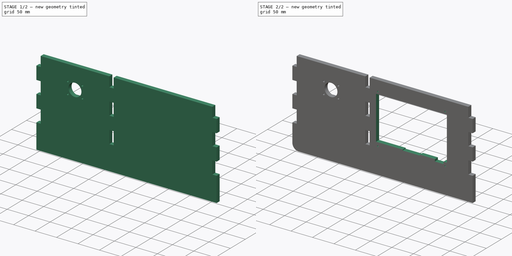
[diagram: build sequence overview — one tinted view per stage of 2, left to right]
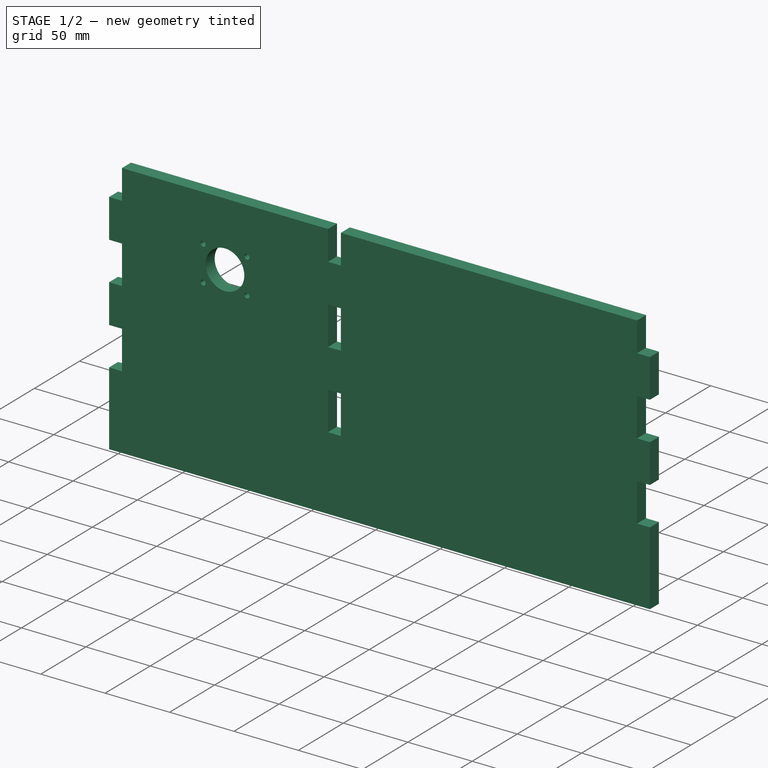
[diagram: stage 1 of 2 — iso view after this stage's code; geometry added in this stage tinted green]
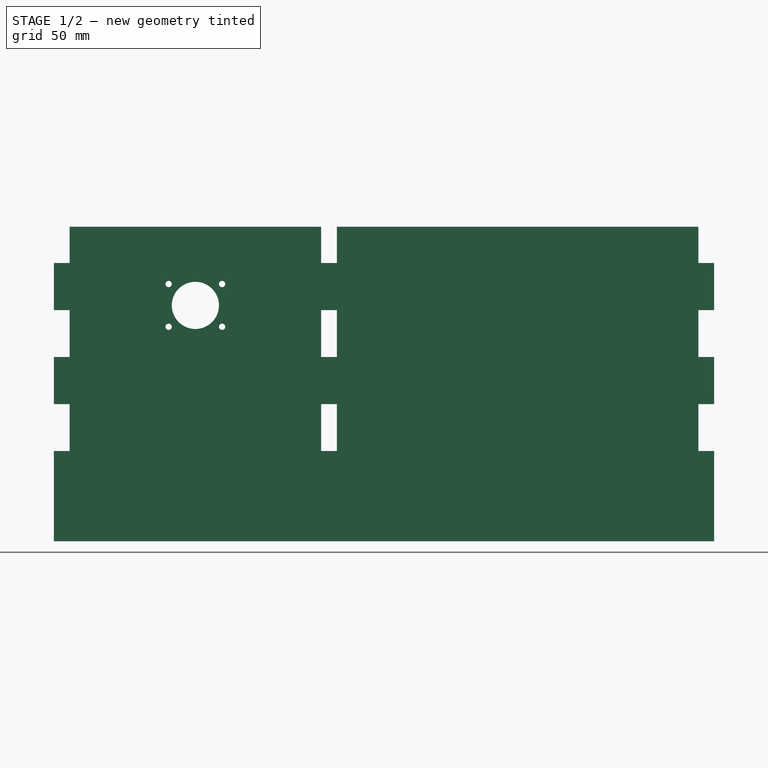
[diagram: stage 1 of 2 — front view after this stage's code; geometry added in this stage tinted green]
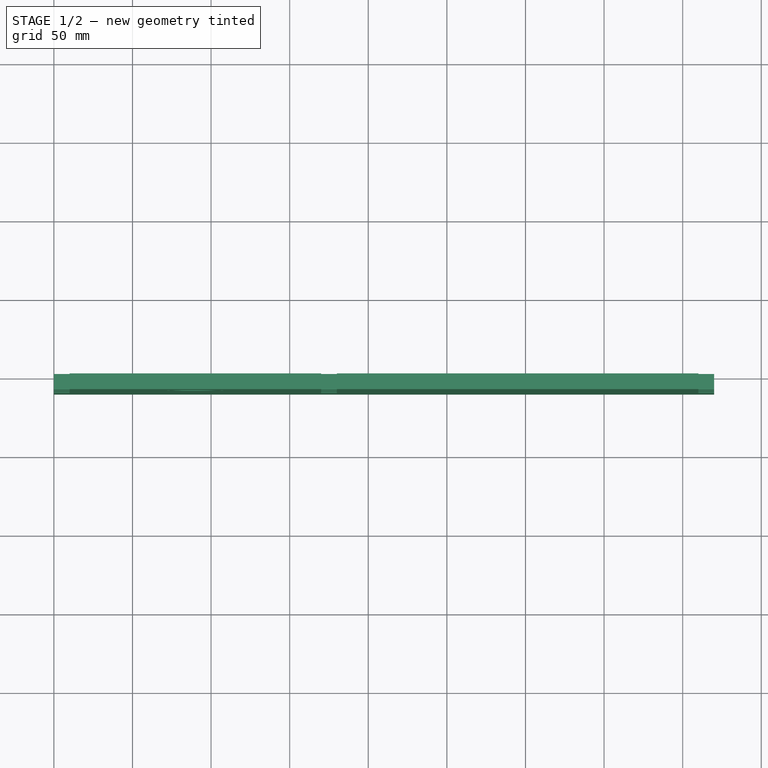
[diagram: stage 1 of 2 — top view after this stage's code; geometry added in this stage tinted green]
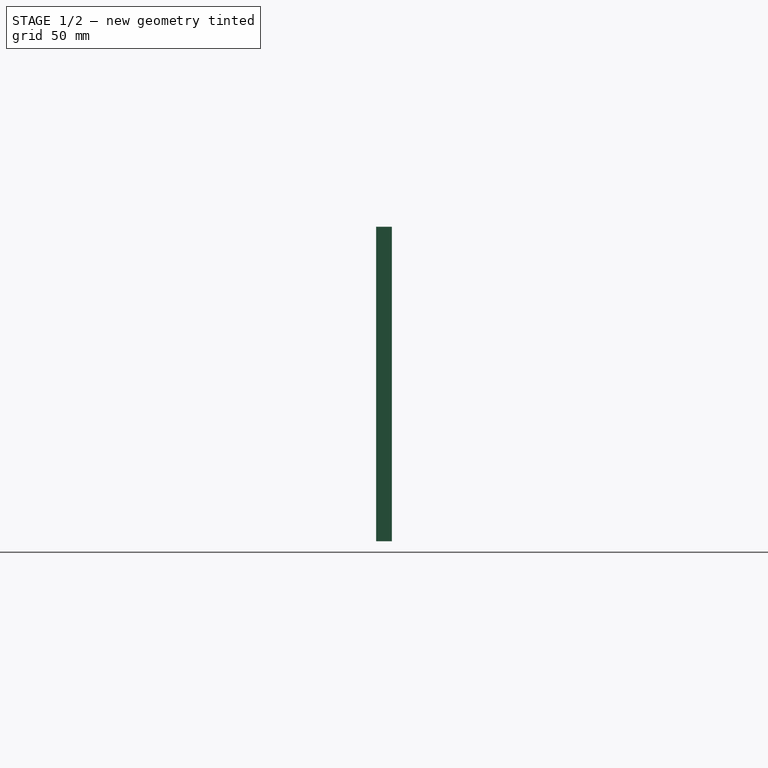
[diagram: stage 1 of 2 — right view after this stage's code; geometry added in this stage tinted green]
FCSTD DOCUMENT  (FreeCAD 0.19R19327 (Git))
Label: Panel
License: All rights reserved
LicenseURL: http://en.wikipedia.org/wiki/All_rights_reserved
objects: Sketcher::SketchObject×3, PartDesign::Pocket×2, PartDesign::Pad×1, PartDesign::Fillet×1, PartDesign::Body×1
note: 11 computed .brp shape members not serialized (recipe doc carries the construction recipe); baked Part::Feature solids carry a one-line shape summary decoded from their .brp

FEATURE [Sketcher::SketchObject] Sketch
  MapMode = 5
  Placement = pos=(0,0,0) rot=(1,0,0;1.5708rad)
  Support = -> [XZ_Plane]
  sketch-geometry (38):
    g0: LineSegment StartX=0 StartY=0 StartZ=0 EndX=0 EndY=57.4 EndZ=0
    g1: LineSegment StartX=0 StartY=57.4 StartZ=0 EndX=10 EndY=57.4 EndZ=0
    g2: LineSegment StartX=10 StartY=57.4 StartZ=0 EndX=10 EndY=87.2 EndZ=0
    g3: LineSegment StartX=10 StartY=87.2 StartZ=0 EndX=0 EndY=87.2 EndZ=0
    g4: LineSegment StartX=0 StartY=87.2 StartZ=0 EndX=0 EndY=117.2 EndZ=0
    g5: LineSegment StartX=0 StartY=117.2 StartZ=0 EndX=10 EndY=117.2 EndZ=0
    g6: LineSegment StartX=10 StartY=117.2 StartZ=0 EndX=10 EndY=147 EndZ=0
    g7: LineSegment StartX=10 StartY=147 StartZ=0 EndX=0 EndY=147 EndZ=0
    g8: LineSegment StartX=0 StartY=147 StartZ=0 EndX=0 EndY=177 EndZ=0
    g9: LineSegment StartX=0 StartY=177 StartZ=0 EndX=10 EndY=177 EndZ=0
    g10: LineSegment StartX=10 StartY=177 StartZ=0 EndX=10 EndY=200 EndZ=0
    g11: LineSegment StartX=10 StartY=200 StartZ=0 EndX=170 EndY=200 EndZ=0
    g12: LineSegment StartX=170 StartY=200 StartZ=0 EndX=170 EndY=177 EndZ=0
    g13: LineSegment StartX=170 StartY=177 StartZ=0 EndX=180 EndY=177 EndZ=0
    g14: LineSegment StartX=180 StartY=177 StartZ=0 EndX=180 EndY=200 EndZ=0
    g15: LineSegment StartX=180 StartY=200 StartZ=0 EndX=410 EndY=200 EndZ=0
    g16: LineSegment StartX=410 StartY=200 StartZ=0 EndX=410 EndY=177 EndZ=0
    g17: LineSegment StartX=410 StartY=177 StartZ=0 EndX=420 EndY=177 EndZ=0
    g18: LineSegment StartX=420 StartY=177 StartZ=0 EndX=420 EndY=147 EndZ=0
    g19: LineSegment StartX=420 StartY=147 StartZ=0 EndX=410 EndY=147 EndZ=0
    g20: LineSegment StartX=410 StartY=147 StartZ=0 EndX=410 EndY=117.2 EndZ=0
    g21: LineSegment StartX=410 StartY=117.2 StartZ=0 EndX=420 EndY=117.2 EndZ=0
    g22: LineSegment StartX=420 StartY=117.2 StartZ=0 EndX=420 EndY=87.2 EndZ=0
    g23: LineSegment StartX=420 StartY=87.2 StartZ=0 EndX=410 EndY=87.2 EndZ=0
    g24: LineSegment StartX=410 StartY=87.2 StartZ=0 EndX=410 EndY=57.4 EndZ=0
    g25: LineSegment StartX=410 StartY=57.4 StartZ=0 EndX=420 EndY=57.4 EndZ=0
    g26: LineSegment StartX=420 StartY=57.4 StartZ=0 EndX=420 EndY=0 EndZ=0
    g27: LineSegment StartX=420 StartY=0 StartZ=0 EndX=0 EndY=0 EndZ=0
    g28: LineSegment StartX=170 StartY=147 StartZ=0 EndX=180 EndY=147 EndZ=0
    g29: LineSegment StartX=180 StartY=147 StartZ=0 EndX=180 EndY=117.2 EndZ=0
    g30: LineSegment StartX=180 StartY=117.2 StartZ=0 EndX=170 EndY=117.2 EndZ=0
    g31: LineSegment StartX=170 StartY=117.2 StartZ=0 EndX=170 EndY=147 EndZ=0
    g32: LineSegment StartX=170 StartY=87.2 StartZ=0 EndX=180 EndY=87.2 EndZ=0
    g33: LineSegment StartX=180 StartY=87.2 StartZ=0 EndX=180 EndY=57.4 EndZ=0
    g34: LineSegment StartX=180 StartY=57.4 StartZ=0 EndX=170 EndY=57.4 EndZ=0
    g35: LineSegment StartX=170 StartY=57.4 StartZ=0 EndX=170 EndY=87.2 EndZ=0
    g36: LineSegment [constr] StartX=170 StartY=177 StartZ=0 EndX=170 EndY=147 EndZ=0
    g37: LineSegment [constr] StartX=170 StartY=117.2 StartZ=0 EndX=170 EndY=87.2 EndZ=0
  constraints (111):
    c: Coincident(g-1,g0)
    c: Vertical(g0)
    c: Coincident(g0,g1)
    c: Coincident(g1,g2)
    c: Vertical(g2)
    c: Coincident(g2,g3)
    c: Horizontal(g3)
    c: Coincident(g3,g4)
    c: Vertical(g4)
    c: Coincident(g4,g5)
    c: Horizontal(g5)
    c: Coincident(g5,g6)
    c: Vertical(g6)
    c: Coincident(g6,g7)
    c: Horizontal(g7)
    c: Coincident(g7,g8)
    c: PointOnObject(g8,g-2)
    c: Coincident(g8,g9)
    c: Horizontal(g9)
    c: Coincident(g9,g10)
    c: Vertical(g10)
    c: Coincident(g10,g11)
    c: Horizontal(g11)
    c: Coincident(g11,g12)
    c: Vertical(g12)
    c: Coincident(g12,g13)
    c: Horizontal(g13)
    c: Coincident(g13,g14)
    c: Vertical(g14)
    c: Coincident(g14,g15)
    c: Horizontal(g15)
    c: Coincident(g15,g16)
    c: Coincident(g16,g17)
    c: Horizontal(g17)
    c: Coincident(g17,g18)
    c: Vertical(g18)
    c: Coincident(g18,g19)
    c: Horizontal(g19)
    c: Coincident(g19,g20)
    c: Vertical(g20)
    c: Coincident(g20,g21)
    c: Coincident(g21,g22)
    c: Coincident(g22,g23)
    c: Coincident(g23,g24)
    c: Coincident(g24,g25)
    c: Coincident(g25,g26)
    c: PointOnObject(g26,g-1)
    c: Vertical(g26)
    c: Coincident(g26,g27)
    c: Coincident(g27,g0)
    c: Vertical(g24)
    c: Horizontal(g23)
    c: Horizontal(g21)
    c: Horizontal(g25)
    c: Vertical(g22)
    c: Equal(g0,g26)
    c: DistanceY(g26,g26) = 57.4
    c: Equal(g9,g7)
    c: Equal(g7,g5)
    c: Equal(g5,g3)
    c: Equal(g3,g1)
    c: Equal(g1,g17)
    c: Equal(g17,g19)
    c: Equal(g19,g21)
    c: Equal(g21,g23)
    c: Equal(g23,g25)
    c: Vertical(g16)
    c: DistanceX(g17,g17) = 10
    c: Equal(g2,g6)
    c: Equal(g6,g24)
    c: Equal(g24,g20)
    c: DistanceY(g20,g20) = 29.8
    c: Equal(g4,g8)
    c: Equal(g8,g18)
    c: Equal(g18,g22)
    c: DistanceY(g18,g18) = 30
    c: Equal(g10,g16)
    c: DistanceY(g10,g10) = 23
    c: DistanceY(g12,g12) = 23
    c: DistanceX(g13,g13) = 10
    c: DistanceX(g11,g11) = 160
    c: Equal(g12,g14)
    c: DistanceX(g15,g15) = 230
    c: Coincident(g28,g29)
    c: Coincident(g29,g30)
    c: Coincident(g30,g31)
    c: Coincident(g31,g28)
    c: Horizontal(g28)
    c: Horizontal(g30)
    c: Vertical(g29)
    c: Vertical(g31)
    c: Coincident(g32,g33)
    c: Coincident(g33,g34)
    c: Coincident(g34,g35)
    c: Coincident(g35,g32)
    c: Horizontal(g32)
    c: Horizontal(g34)
    c: Vertical(g33)
    c: Vertical(g35)
    c: Coincident(g36,g12)
    c: Vertical(g36)
    c: Coincident(g28,g36)
    c: Equal(g28,g13)
    c: Equal(g13,g32)
    c: Equal(g31,g35)
    c: Coincident(g37,g30)
    c: Vertical(g37)
    c: Coincident(g32,g37)
    c: Equal(g37,g36)
    c: DistanceY(g37,g37) = 30
    c: DistanceY(g31,g31) = 29.8
FEATURE [PartDesign::Pad] Pad
  Length = 10
  Length2 = 100
  Placement = pos=(0,0,0) rot=(1,0,0;1.5708rad)
  Profile = -> Sketch
  Type = 0
FEATURE [Sketcher::SketchObject] CopySketch001
  Placement = pos=(0,0,0) rot=(1,0,0;1.5708rad)
  sketch-geometry (10):
    g0: LineSegment [constr] StartX=73 StartY=163.6 StartZ=0 EndX=107 EndY=163.6 EndZ=0
    g1: LineSegment [constr] StartX=107 StartY=163.6 StartZ=0 EndX=107 EndY=136.4 EndZ=0
    g2: LineSegment [constr] StartX=107 StartY=136.4 StartZ=0 EndX=73 EndY=136.4 EndZ=0
    g3: LineSegment [constr] StartX=73 StartY=136.4 StartZ=0 EndX=73 EndY=163.6 EndZ=0
    g4: LineSegment [constr] StartX=73 StartY=136.4 StartZ=0 EndX=107 EndY=163.6 EndZ=0
    g5: Circle CenterX=73 CenterY=163.6 CenterZ=0 NormalX=0 NormalY=0 NormalZ=1 AngleXU=0 Radius=2
    g6: Circle CenterX=107 CenterY=163.6 CenterZ=0 NormalX=0 NormalY=0 NormalZ=1 AngleXU=0 Radius=2
    g7: Circle CenterX=107 CenterY=136.4 CenterZ=0 NormalX=0 NormalY=0 NormalZ=1 AngleXU=0 Radius=2
    g8: Circle CenterX=73 CenterY=136.4 CenterZ=0 NormalX=0 NormalY=0 NormalZ=1 AngleXU=0 Radius=2
    g9: Circle CenterX=90 CenterY=150 CenterZ=0 NormalX=0 NormalY=0 NormalZ=1 AngleXU=0 Radius=15
  constraints (24):
    c: Coincident(g0,g1)
    c: Coincident(g1,g2)
    c: Coincident(g2,g3)
    c: Coincident(g3,g0)
    c: Horizontal(g0)
    c: Horizontal(g2)
    c: Vertical(g1)
    c: Vertical(g3)
    c: Coincident(g4,g2)
    c: Coincident(g4,g0)
    c: DistanceY(g1,g1) = 27.2
    c: DistanceX(g0,g0) = 34
    c: Coincident(g5,g0)
    c: Coincident(g6,g0)
    c: Coincident(g7,g1)
    c: Coincident(g8,g2)
    c: Equal(g8,g5)
    c: Equal(g5,g6)
    c: Equal(g6,g7)
    c: Radius(g5) = 2
    c: Radius(g9) = 15
    c: Symmetric(g8,g6,g9)
    c: DistanceY(g-1,g9) = 150
    c: DistanceX(g-1,g9) = 90
FEATURE [PartDesign::Pocket] Pocket
  BaseFeature = -> Pad
  Length = 5
  Length2 = 100
  Placement = pos=(0,0,0) rot=(1,0,0;1.5708rad)
  Profile = -> CopySketch001
  Reversed = true
  Type = 1
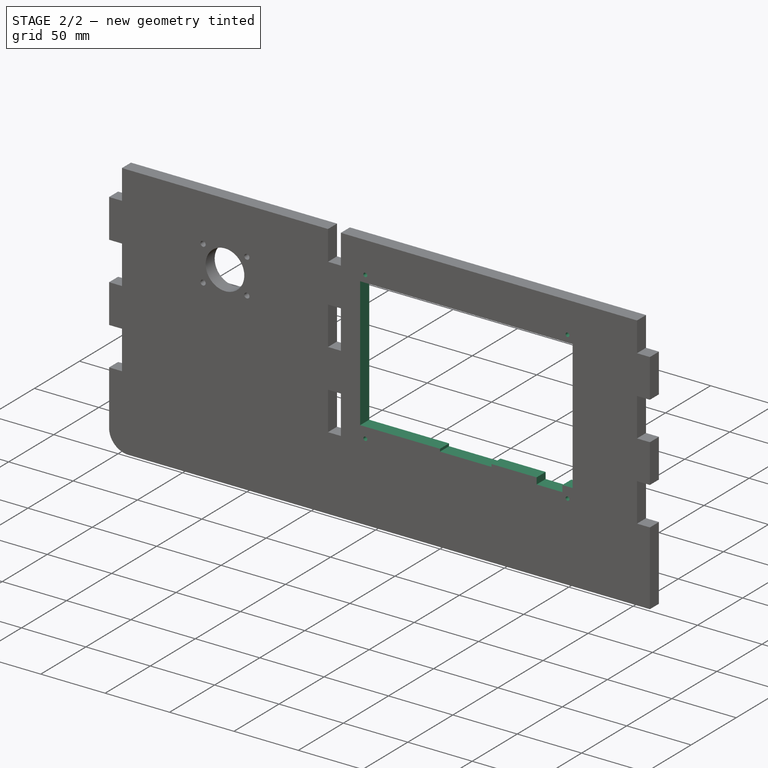
[diagram: stage 2 of 2 — iso view after this stage's code; geometry added in this stage tinted green]
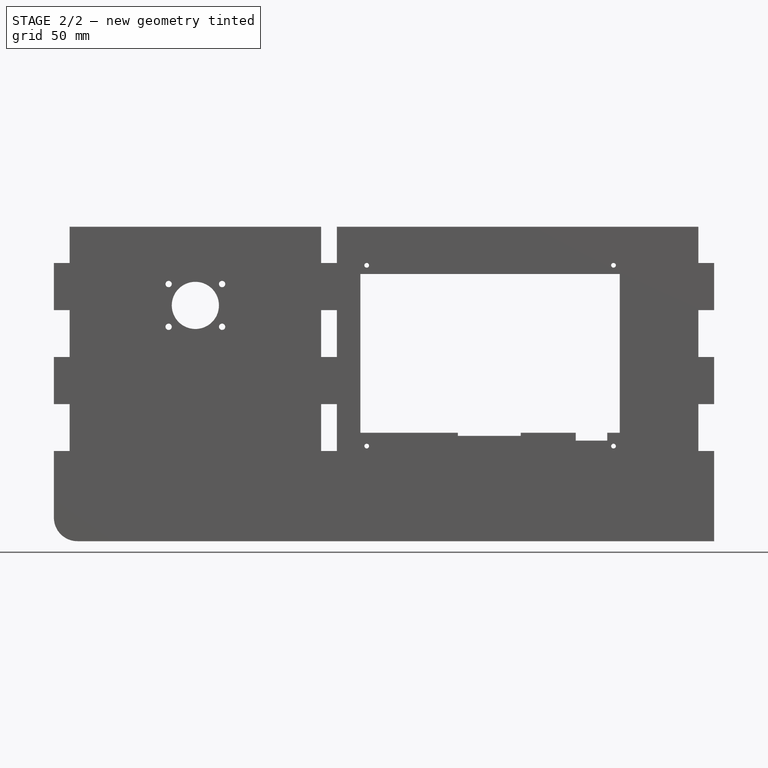
[diagram: stage 2 of 2 — front view after this stage's code; geometry added in this stage tinted green]
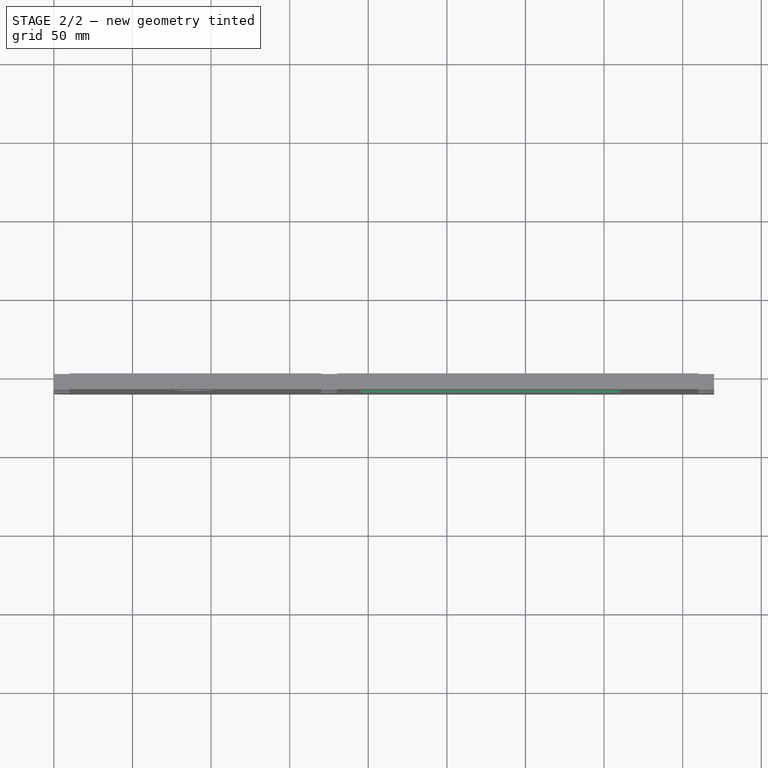
[diagram: stage 2 of 2 — top view after this stage's code; geometry added in this stage tinted green]
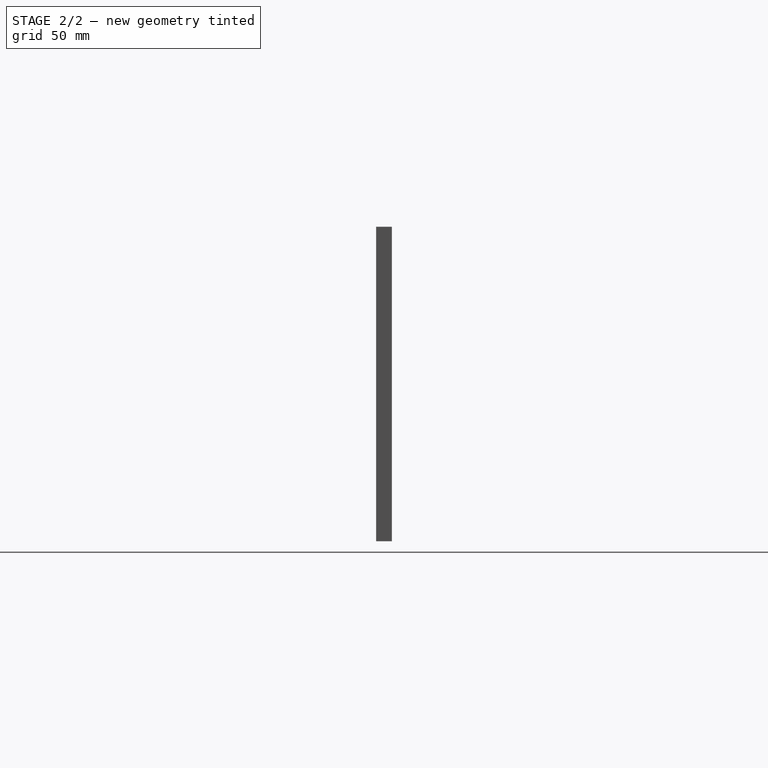
[diagram: stage 2 of 2 — right view after this stage's code; geometry added in this stage tinted green]
FEATURE [PartDesign::Fillet] Fillet
  Base = -> Pocket [Edge1]
  BaseFeature = -> Pocket
  Placement = pos=(0,0,0) rot=(1,0,0;1.5708rad)
  Radius = 15
FEATURE [Sketcher::SketchObject] Sketch001
  MapMode = 5
  Placement = pos=(0,0,0) rot=(1,0,0;1.5708rad)
  Support = -> [XZ_Plane]
  sketch-geometry (20):
    g0: LineSegment StartX=195 StartY=170 StartZ=0 EndX=360 EndY=170 EndZ=0
    g1: LineSegment StartX=360 StartY=170 StartZ=0 EndX=360 EndY=69 EndZ=0
    g2: LineSegment StartX=360 StartY=69 StartZ=0 EndX=352 EndY=69 EndZ=0
    g3: LineSegment StartX=352 StartY=69 StartZ=0 EndX=352 EndY=64 EndZ=0
    g4: LineSegment StartX=352 StartY=64 StartZ=0 EndX=332 EndY=64 EndZ=0
    g5: LineSegment StartX=332 StartY=64 StartZ=0 EndX=332 EndY=69 EndZ=0
    g6: LineSegment StartX=332 StartY=69 StartZ=0 EndX=297 EndY=69 EndZ=0
    g7: LineSegment StartX=297 StartY=69 StartZ=0 EndX=297 EndY=67 EndZ=0
    g8: LineSegment StartX=297 StartY=67 StartZ=0 EndX=257 EndY=67 EndZ=0
    g9: LineSegment StartX=257 StartY=67 StartZ=0 EndX=257 EndY=69 EndZ=0
    g10: LineSegment StartX=257 StartY=69 StartZ=0 EndX=195 EndY=69 EndZ=0
    g11: LineSegment StartX=195 StartY=69 StartZ=0 EndX=195 EndY=170 EndZ=0
    g12: Circle CenterX=199 CenterY=175.5 CenterZ=0 NormalX=0 NormalY=0 NormalZ=1 AngleXU=0 Radius=1.5
    g13: Circle CenterX=356 CenterY=175.5 CenterZ=0 NormalX=0 NormalY=0 NormalZ=1 AngleXU=0 Radius=1.5
    g14: Circle CenterX=356 CenterY=60.5 CenterZ=0 NormalX=0 NormalY=0 NormalZ=1 AngleXU=0 Radius=1.5
    g15: Circle CenterX=199 CenterY=60.5 CenterZ=0 NormalX=0 NormalY=0 NormalZ=1 AngleXU=0 Radius=1.5
    g16: LineSegment [constr] StartX=199 StartY=60.5 StartZ=0 EndX=356 EndY=60.5 EndZ=0
    g17: LineSegment [constr] StartX=356 StartY=60.5 StartZ=0 EndX=356 EndY=175.5 EndZ=0
    g18: LineSegment [constr] StartX=356 StartY=175.5 StartZ=0 EndX=199 EndY=175.5 EndZ=0
    g19: LineSegment [constr] StartX=199 StartY=175.5 StartZ=0 EndX=199 EndY=60.5 EndZ=0
  constraints (56):
    c: Horizontal(g0)
    c: Coincident(g0,g1)
    c: Vertical(g1)
    c: Coincident(g1,g2)
    c: Horizontal(g2)
    c: Coincident(g2,g3)
    c: Coincident(g3,g4)
    c: Horizontal(g4)
    c: Coincident(g4,g5)
    c: Vertical(g5)
    c: Coincident(g5,g6)
    c: Horizontal(g6)
    c: Coincident(g6,g7)
    c: Coincident(g7,g8)
    c: Horizontal(g8)
    c: Coincident(g8,g9)
    c: Vertical(g9)
    c: Coincident(g9,g10)
    c: Horizontal(g10)
    c: Coincident(g10,g11)
    c: Coincident(g11,g0)
    c: Vertical(g11)
    c: Vertical(g3)
    c: Equal(g1,g11)
    c: DistanceX(g0,g0) = 165
    c: DistanceY(g11,g11) = 101
    c: Vertical(g7)
    c: Equal(g9,g7)
    c: DistanceX(g2,g2) = 8
    c: DistanceX(g10,g10) = 62
    c: DistanceX(g8,g8) = 40
    c: DistanceY(g9,g9) = 2
    c: DistanceX(g4,g4) = 20
    c: DistanceY(g5,g5) = 5
    c: DistanceX(g-1,g10) = 195
    c: DistanceY(g-1,g10) = 69
    c: Equal(g12,g15)
    c: Equal(g15,g14)
    c: Equal(g14,g13)
    c: Radius(g12) = 1.5
    c: Coincident(g16,g17)
    c: Coincident(g17,g18)
    c: Coincident(g18,g19)
    c: Coincident(g19,g16)
    c: Horizontal(g16)
    c: Horizontal(g18)
    c: Vertical(g17)
    c: Vertical(g19)
    c: Coincident(g16,g15)
    c: Coincident(g17,g13)
    c: Coincident(g14,g16)
    c: Coincident(g12,g18)
    c: DistanceX(g18,g18) = 157
    c: DistanceY(g17,g17) = 115
    c: DistanceX(g10,g15) = 4
    c: DistanceY(g15,g10) = 8.5
FEATURE [PartDesign::Pocket] Pocket001
  BaseFeature = -> Fillet
  Length = 5
  Length2 = 100
  Placement = pos=(0,0,0) rot=(1,0,0;1.5708rad)
  Profile = -> Sketch001
  Reversed = true
  Type = 1
FEATURE [PartDesign::Body] Body
  Group = -> [Sketch,Pad,Pocket,Fillet,Sketch001,Pocket001]
  Origin = -> Origin
  Tip = -> Pocket001
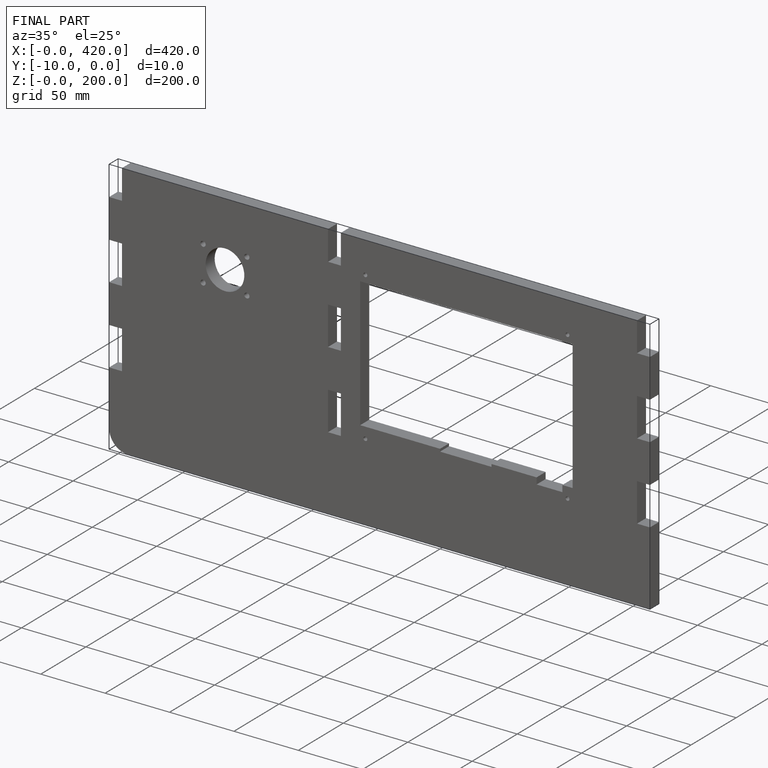
[diagram: finished part — iso view with bounding-box wireframe]
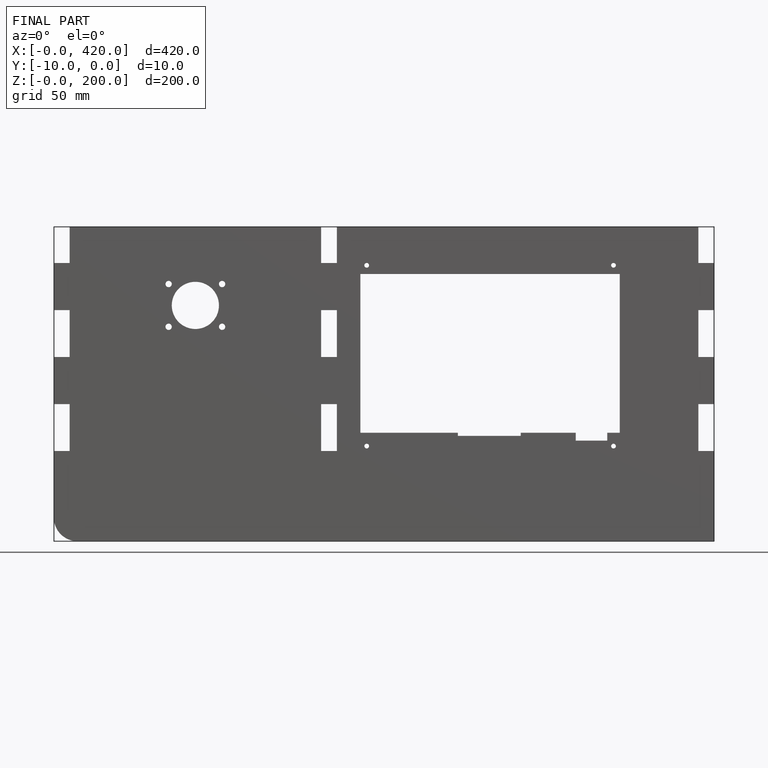
[diagram: finished part — front view with bounding-box wireframe]
